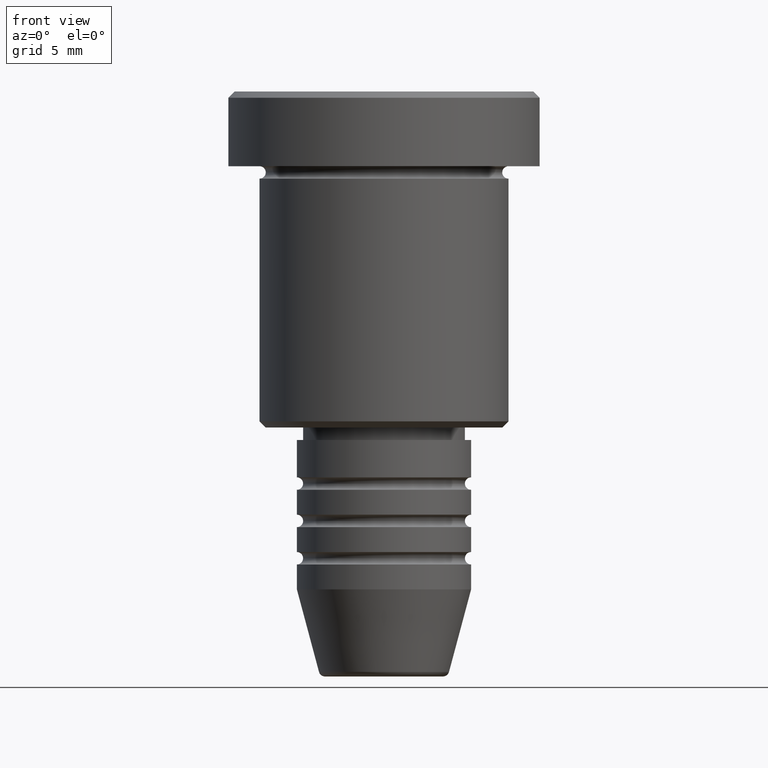
[diagram: clean part render]
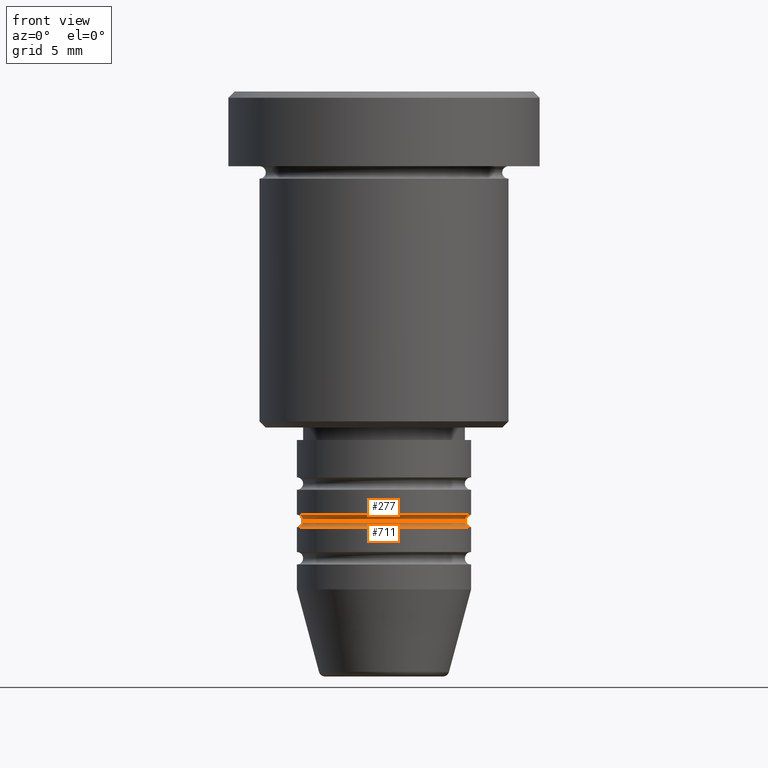
[diagram: same view with one multi-face feature highlighted, each face labeled with its STEP entity id]
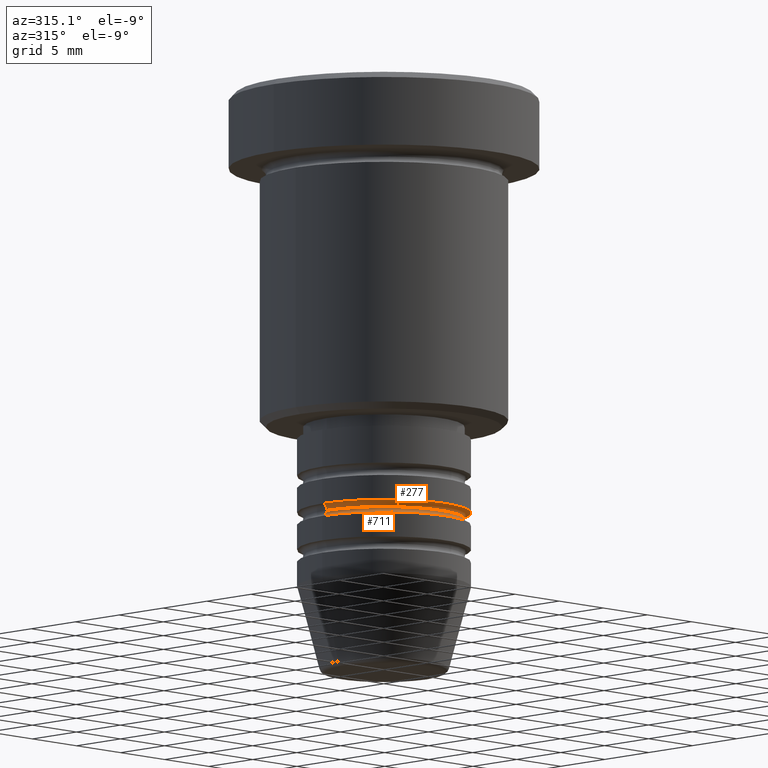
[diagram: same view with one multi-face feature highlighted, each face labeled with its STEP entity id]
A machine part, front view. The highlighted faces form ONE feature: a constant-radius fillet chain: 2 tangent blend faces with common blend radius 0.5 mm. The faces share edges in the B-rep.
A second angle (auxiliary view) of the same feature is appended — it is thin or edge-on in the first view.
Their STEP definitions:
[1] entity #277 (Torus):
#52 = ORIENTED_EDGE ( 'NONE', *, *, #125, .F. ) ;
#101 = CIRCLE ( 'NONE', #521, 6.500000000000000888 ) ;
#125 = EDGE_CURVE ( 'NONE', #698, #155, #337, .T. ) ;
#155 = VERTEX_POINT ( 'NONE', #745 ) ;
#180 = DIRECTION ( 'NONE',  ( -0.000000000000000000, -0.000000000000000000, 1.000000000000000000 ) ) ;
#277 = ADVANCED_FACE ( 'NONE', ( #988 ), #1034, .F. ) ;
#281 = DIRECTION ( 'NONE',  ( -0.000000000000000000, -1.000000000000000000, -0.000000000000000000 ) ) ;
#296 = AXIS2_PLACEMENT_3D ( 'NONE', #461, #281, #1014 ) ;
#334 = CARTESIAN_POINT ( 'NONE',  ( 7.000000000000000888, 8.572527594031474176E-16, -34.49999999999997868 ) ) ;
#337 = CIRCLE ( 'NONE', #296, 0.5000000000000004441 ) ;
#353 = DIRECTION ( 'NONE',  ( 1.000000000000000000, 0.000000000000000000, 0.000000000000000000 ) ) ;
#429 = ORIENTED_EDGE ( 'NONE', *, *, #1060, .F. ) ;
#451 = AXIS2_PLACEMENT_3D ( 'NONE', #334, #1002, #562 ) ;
#461 = CARTESIAN_POINT ( 'NONE',  ( -7.000000000000000888, 0.000000000000000000, -34.49999999999997868 ) ) ;
#474 = EDGE_CURVE ( 'NONE', #698, #575, #101, .T. ) ;
#493 = EDGE_CURVE ( 'NONE', #575, #818, #1163, .T. ) ;
#498 = DIRECTION ( 'NONE',  ( 0.000000000000000000, 0.000000000000000000, -1.000000000000000000 ) ) ;
#513 = EDGE_LOOP ( 'NONE', ( #1178, #870, #429, #52 ) ) ;
#521 = AXIS2_PLACEMENT_3D ( 'NONE', #962, #944, #970 ) ;
#562 = DIRECTION ( 'NONE',  ( -1.000000000000000000, -1.224646799147351482E-16, 0.000000000000000000 ) ) ;
#575 = VERTEX_POINT ( 'NONE', #732 ) ;
#661 = DIRECTION ( 'NONE',  ( -1.000000000000000000, 0.000000000000000000, 0.000000000000000000 ) ) ;
#698 = VERTEX_POINT ( 'NONE', #932 ) ;
#732 = CARTESIAN_POINT ( 'NONE',  ( 6.500000000000000888, 0.000000000000000000, -34.49999999999998579 ) ) ;
#745 = CARTESIAN_POINT ( 'NONE',  ( -7.000000000000000000, 8.572527594031473190E-16, -33.99999999999997868 ) ) ;
#818 = VERTEX_POINT ( 'NONE', #1139 ) ;
#870 = ORIENTED_EDGE ( 'NONE', *, *, #493, .T. ) ;
#932 = CARTESIAN_POINT ( 'NONE',  ( -6.500000000000000888, 8.266365894244635319E-16, -34.49999999999998579 ) ) ;
#943 = CIRCLE ( 'NONE', #1079, 7.000000000000000000 ) ;
#944 = DIRECTION ( 'NONE',  ( -0.000000000000000000, -0.000000000000000000, 1.000000000000000000 ) ) ;
#962 = CARTESIAN_POINT ( 'NONE',  ( 0.000000000000000000, 0.000000000000000000, -34.49999999999998579 ) ) ;
#970 = DIRECTION ( 'NONE',  ( 1.000000000000000000, 0.000000000000000000, 0.000000000000000000 ) ) ;
#988 = FACE_OUTER_BOUND ( 'NONE', #513, .T. ) ;
#1002 = DIRECTION ( 'NONE',  ( -1.224646799147353207E-16, 1.000000000000000000, 0.000000000000000000 ) ) ;
#1014 = DIRECTION ( 'NONE',  ( 0.000000000000000000, 0.000000000000000000, -1.000000000000000000 ) ) ;
#1017 = AXIS2_PLACEMENT_3D ( 'NONE', #1130, #498, #661 ) ;
#1034 = TOROIDAL_SURFACE ( 'NONE', #1017, 7.000000000000000888, 0.5000000000000000000 ) ;
#1060 = EDGE_CURVE ( 'NONE', #155, #818, #943, .T. ) ;
#1079 = AXIS2_PLACEMENT_3D ( 'NONE', #1174, #180, #353 ) ;
#1130 = CARTESIAN_POINT ( 'NONE',  ( 0.000000000000000000, 0.000000000000000000, -34.49999999999997868 ) ) ;
#1139 = CARTESIAN_POINT ( 'NONE',  ( 7.000000000000000000, 0.000000000000000000, -33.99999999999997868 ) ) ;
#1163 = CIRCLE ( 'NONE', #451, 0.5000000000000004441 ) ;
#1174 = CARTESIAN_POINT ( 'NONE',  ( 0.000000000000000000, 0.000000000000000000, -33.99999999999997868 ) ) ;
#1178 = ORIENTED_EDGE ( 'NONE', *, *, #474, .T. ) ;
[2] entity #711 (Torus):
#24 = VERTEX_POINT ( 'NONE', #1082 ) ;
#86 = CARTESIAN_POINT ( 'NONE',  ( 0.000000000000000000, 0.000000000000000000, -34.99999999999999289 ) ) ;
#101 = CIRCLE ( 'NONE', #521, 6.500000000000000888 ) ;
#200 = CARTESIAN_POINT ( 'NONE',  ( 7.000000000000000888, 0.000000000000000000, -34.49999999999998579 ) ) ;
#228 = DIRECTION ( 'NONE',  ( -1.000000000000000000, 1.224646799147351482E-16, 0.000000000000000000 ) ) ;
#233 = AXIS2_PLACEMENT_3D ( 'NONE', #200, #437, #987 ) ;
#248 = AXIS2_PLACEMENT_3D ( 'NONE', #86, #974, #438 ) ;
#352 = ORIENTED_EDGE ( 'NONE', *, *, #952, .T. ) ;
#417 = ORIENTED_EDGE ( 'NONE', *, *, #474, .F. ) ;
#437 = DIRECTION ( 'NONE',  ( 0.000000000000000000, -1.000000000000000000, 0.000000000000000000 ) ) ;
#438 = DIRECTION ( 'NONE',  ( 1.000000000000000000, 0.000000000000000000, 0.000000000000000000 ) ) ;
#443 = ORIENTED_EDGE ( 'NONE', *, *, #464, .T. ) ;
#445 = DIRECTION ( 'NONE',  ( 1.000000000000000000, 0.000000000000000000, 0.000000000000000000 ) ) ;
#464 = EDGE_CURVE ( 'NONE', #698, #24, #800, .T. ) ;
#474 = EDGE_CURVE ( 'NONE', #698, #575, #101, .T. ) ;
#521 = AXIS2_PLACEMENT_3D ( 'NONE', #962, #944, #970 ) ;
#535 = VERTEX_POINT ( 'NONE', #736 ) ;
#575 = VERTEX_POINT ( 'NONE', #732 ) ;
#596 = DIRECTION ( 'NONE',  ( 1.224646799147353207E-16, 1.000000000000000000, 0.000000000000000000 ) ) ;
#613 = DIRECTION ( 'NONE',  ( -0.000000000000000000, -0.000000000000000000, 1.000000000000000000 ) ) ;
#698 = VERTEX_POINT ( 'NONE', #932 ) ;
#711 = ADVANCED_FACE ( 'NONE', ( #1149 ), #856, .F. ) ;
#723 = CIRCLE ( 'NONE', #233, 0.5000000000000004441 ) ;
#732 = CARTESIAN_POINT ( 'NONE',  ( 6.500000000000000888, 0.000000000000000000, -34.49999999999998579 ) ) ;
#736 = CARTESIAN_POINT ( 'NONE',  ( 7.000000000000000000, 0.000000000000000000, -34.99999999999999289 ) ) ;
#794 = CARTESIAN_POINT ( 'NONE',  ( 0.000000000000000000, 0.000000000000000000, -34.49999999999998579 ) ) ;
#800 = CIRCLE ( 'NONE', #984, 0.5000000000000004441 ) ;
#856 = TOROIDAL_SURFACE ( 'NONE', #1020, 7.000000000000000888, 0.5000000000000000000 ) ;
#912 = EDGE_LOOP ( 'NONE', ( #417, #443, #352, #982 ) ) ;
#932 = CARTESIAN_POINT ( 'NONE',  ( -6.500000000000000888, 8.266365894244635319E-16, -34.49999999999998579 ) ) ;
#944 = DIRECTION ( 'NONE',  ( -0.000000000000000000, -0.000000000000000000, 1.000000000000000000 ) ) ;
#952 = EDGE_CURVE ( 'NONE', #24, #535, #1038, .T. ) ;
#962 = CARTESIAN_POINT ( 'NONE',  ( 0.000000000000000000, 0.000000000000000000, -34.49999999999998579 ) ) ;
#970 = DIRECTION ( 'NONE',  ( 1.000000000000000000, 0.000000000000000000, 0.000000000000000000 ) ) ;
#974 = DIRECTION ( 'NONE',  ( -0.000000000000000000, -0.000000000000000000, 1.000000000000000000 ) ) ;
#982 = ORIENTED_EDGE ( 'NONE', *, *, #1096, .F. ) ;
#984 = AXIS2_PLACEMENT_3D ( 'NONE', #1050, #596, #228 ) ;
#987 = DIRECTION ( 'NONE',  ( 0.000000000000000000, 0.000000000000000000, -1.000000000000000000 ) ) ;
#1020 = AXIS2_PLACEMENT_3D ( 'NONE', #794, #613, #445 ) ;
#1038 = CIRCLE ( 'NONE', #248, 7.000000000000000000 ) ;
#1050 = CARTESIAN_POINT ( 'NONE',  ( -7.000000000000000888, 8.572527594031474176E-16, -34.49999999999998579 ) ) ;
#1082 = CARTESIAN_POINT ( 'NONE',  ( -7.000000000000000000, 8.572527594031473190E-16, -34.99999999999999289 ) ) ;
#1096 = EDGE_CURVE ( 'NONE', #575, #535, #723, .T. ) ;
#1149 = FACE_OUTER_BOUND ( 'NONE', #912, .T. ) ;